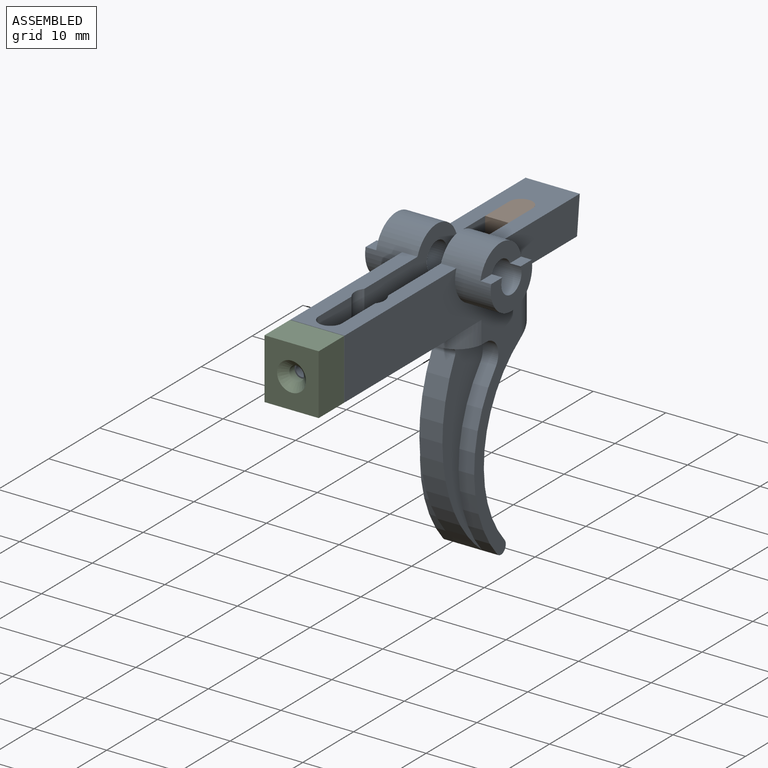
[diagram: assembled view]
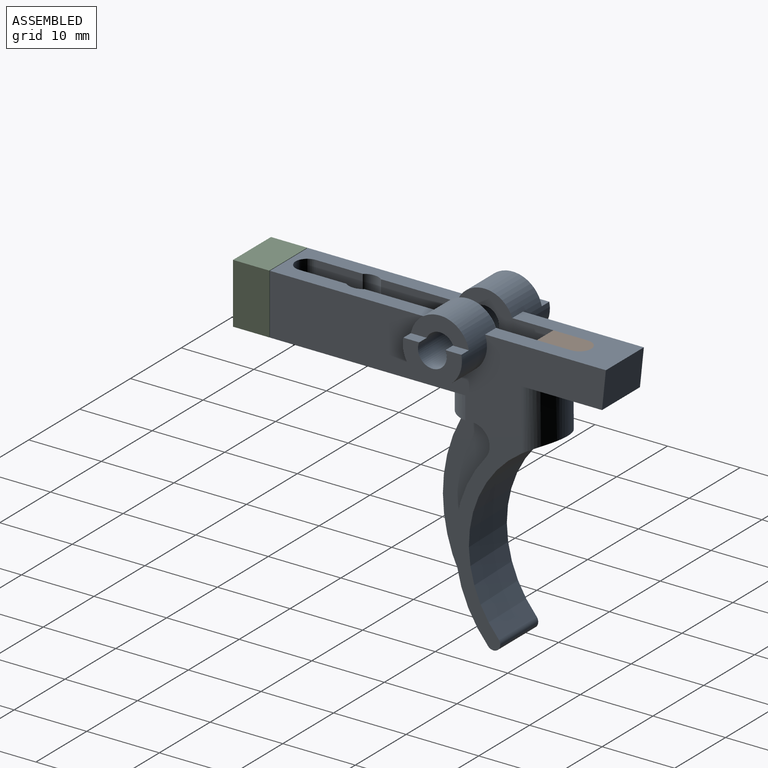
[diagram: assembled view, second angle]
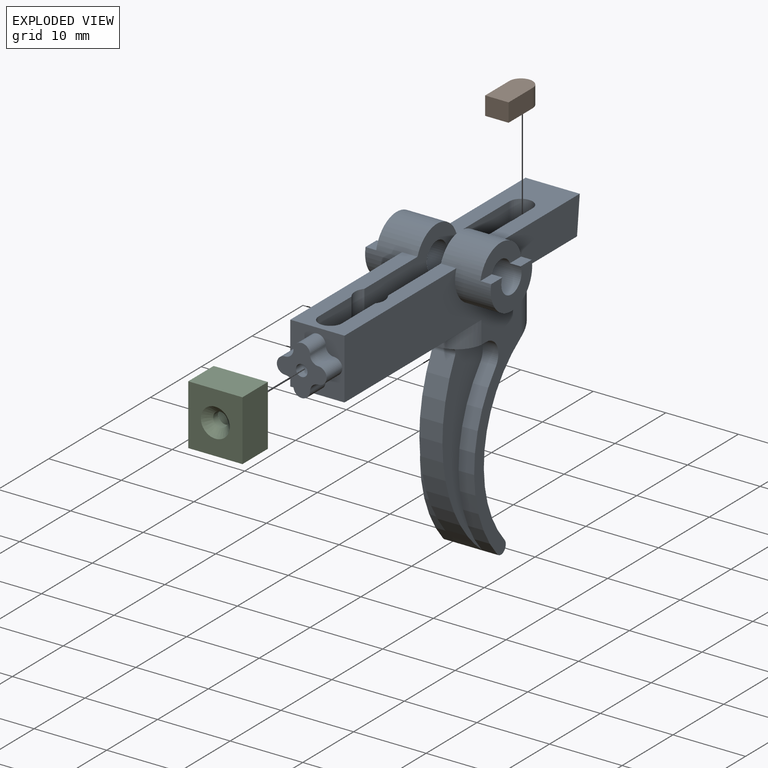
[diagram: exploded view]
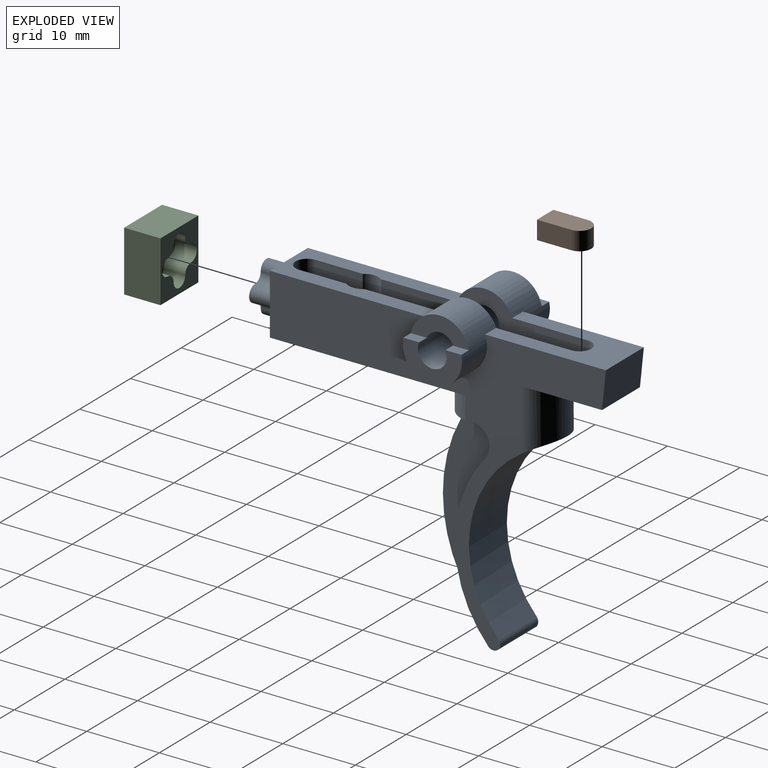
[diagram: exploded view, second angle]
ASSEMBLY  parts=3 mates=3
PART A: 56 faces, bbox 49.8x17.7x42.1 mm
  f0: cylinder r=1.14mm len=3.08mm, axis (1,0,0), area 11.1mm2, adj f1,f7,f54,f55
  f1: cylinder r=1.14mm len=3.08mm, axis (1,0,0), area 5.5mm2, adj f0,f2,f54,f55
  f2: cylinder r=1.14mm len=3.08mm, axis (1,0,0), area 11.1mm2, adj f1,f3,f54,f55
  f3: cylinder r=1.14mm len=3.08mm, axis (1,0,0), area 5.5mm2, adj f2,f4,f54,f55
  f4: cylinder r=1.14mm len=3.08mm, axis (1,0,0), area 11.1mm2, adj f3,f5,f54,f55
  f5: cylinder r=1.14mm len=3.08mm, axis (1,0,0), area 5.5mm2, adj f4,f6,f54,f55
  f6: cylinder r=1.14mm len=3.08mm, axis (1,0,0), area 11.1mm2, adj f5,f7,f54,f55
  f7: cylinder r=1.14mm len=3.08mm, axis (1,0,0), area 5.5mm2, adj f0,f6,f54,f55
  f8: cylinder r=0.8mm len=4.22mm, axis (1,0,0), area 21.2mm2, adj f9,f55
  f9: cylinder r=1.61mm len=5.97mm, axis (0,0,1), area 28.2mm2, adj f8,f10,f46,f47,f48
  f10: plane 22.04x7.5mm, normal (0,0,1), area 96mm2, adj f9,f12,f15,f16,f20,f21,f22,f37
  f11: plane 26.92x7.47mm, normal (0,0,-1), area 182.7mm2, adj f12,f18,f37,f54
  f12: plane 46.71x39.46mm, normal (0,1,0), area 398.3mm2, adj f10,f11,f17,f18,f19,f20,f39,f40
  f13: cylinder r=1.98mm len=7.04mm, axis (0,1,0), area 81.1mm2, adj f21,f23,f24,f25,f26
  f14: cylinder r=1.98mm len=7.04mm, axis (0,1,0), area 81.1mm2, adj f22,f32,f33,f34,f38
  f15: cylinder r=2.04mm len=6.99mm, axis (0,0,1), area 45.4mm2, adj f10,f21,f22,f31,f46,f47,f48,f49
  f16: cylinder r=4.08mm len=8.15mm, axis (0,1,0), area 130.5mm2, adj f10,f19,f21,f23,f24,f25,f26,f37
  f17: plane 7.47x4.22mm, normal (0,0,-1), area 13.5mm2, adj f12,f18,f28,f29,f30,f36,f37,f45
  f18: cylinder r=3.77mm len=7.47mm, axis (0,0,1), area 33.5mm2, adj f11,f12,f17,f37
  f19: plane 16.65x7.47mm, normal (0,0,1), area 86.7mm2, adj f12,f16,f20,f21,f37,f39,f50,f52
  f20: cylinder r=4.08mm len=8.15mm, axis (0,-1,0), area 130.5mm2, adj f10,f12,f19,f22,f32,f33,f34,f38
  f21: plane 28.55x8.68mm, normal (0,1,0), area 150.7mm2, adj f10,f13,f15,f16,f19,f49,f51,f52
  f22: plane 18.25x8.79mm, normal (0,-1,0), area 110.3mm2, adj f10,f14,f15,f20,f49,f50
  f23: plane 2.18x1.48mm, normal (0,0,1), area 3.2mm2, adj f13,f16,f25,f26
  f24: plane 2.18x1.48mm, normal (0,0,1), area 3.2mm2, adj f13,f16,f25,f26
  f25: plane 8.02x3.3mm, normal (0,-1,0), area 16.5mm2, adj f13,f16,f23,f24
  f26: plane 8.21x4.94mm, normal (0,-1,0), area 23.4mm2, adj f13,f16,f23,f24
  f27: cylinder r=17.78mm len=23.37mm, axis (0,1,0), area 54.8mm2, adj f29,f30,f37,f43
  f28: cylinder r=0.79mm len=3.18mm, axis (0,-1,0), area 5.2mm2, adj f17,f29,f35,f36
  f29: plane 27.72x8.4mm, normal (0,-1,0), area 87.1mm2, adj f17,f27,f28,f30,f35
  f30: cylinder r=2.38mm len=3.92mm, axis (0,1,0), area 11.6mm2, adj f17,f27,f29,f37
  f31: plane 4.15x4.15mm, normal (0,0,1), area 13.1mm2, adj f15
  f32: plane 2.18x1.48mm, normal (0,0,1), area 3.2mm2, adj f14,f20,f34,f38
  f33: plane 2.18x1.48mm, normal (0,0,1), area 3.2mm2, adj f14,f20,f34,f38
  f34: plane 8.06x3.34mm, normal (0,1,0), area 16.5mm2, adj f14,f20,f32,f33
  f35: cylinder r=20.96mm len=26.13mm, axis (0,-1,0), area 91.7mm2, adj f28,f29,f36,f43
  f36: plane 27.72x8.4mm, normal (0,1,0), area 87.1mm2, adj f17,f28,f35,f44,f45
  f37: plane 46.71x39.46mm, normal (0,-1,0), area 398.5mm2, adj f10,f11,f16,f17,f18,f19,f27,f30
  f38: plane 8.27x5.01mm, normal (0,1,0), area 23.5mm2, adj f14,f20,f32,f33
  f39: plane 7.47x5.11mm, normal (-0.99,0,-0.1), area 38.3mm2, adj f12,f19,f37,f40
  f40: plane 11.18x7.58mm, normal (0,0,-1), area 60.7mm2, adj f12,f37,f39,f41
  f41: cylinder r=3.73mm len=8.38mm, axis (0,0,1), area 85.1mm2, adj f12,f37,f40,f42
  f42: cylinder r=15.88mm len=25.73mm, axis (0,1,0), area 229.5mm2, adj f12,f37,f41,f43
  f43: cylinder r=0.95mm len=7.47mm, axis (0,1,0), area 22.3mm2, adj f12,f27,f35,f37,f42,f44
  f44: cylinder r=17.78mm len=23.37mm, axis (0,1,0), area 54.8mm2, adj f12,f36,f43,f45
  f45: cylinder r=2.38mm len=3.92mm, axis (0,1,0), area 11.6mm2, adj f12,f17,f36,f44
  f46: plane 8.12x3.23mm, normal (0,0,1), area 23.3mm2, adj f9,f15,f47,f48
  f47: plane 6.5x5.97mm, normal (0,-1,0), area 38.8mm2, adj f9,f10,f15,f46
  f48: plane 6.5x5.97mm, normal (0,1,0), area 38.8mm2, adj f9,f10,f15,f46
  f49: plane 23.76x3.23mm, normal (0,0,1), area 73.7mm2, adj f15,f21,f22,f50,f51
  f50: plane 10.4x5.97mm, normal (0,-1,0), area 40.3mm2, adj f19,f22,f49,f51,f52,f53
  f51: cylinder r=1.61mm len=3.43mm, axis (0,0,1), area 17.4mm2, adj f21,f49,f50,f53
  f52: cylinder r=1.61mm len=3.23mm, axis (0,0,1), area 12.9mm2, adj f19,f21,f50,f53
  f53: plane 7.96x3.23mm, normal (0,0,1), area 20.5mm2, adj f21,f50,f51,f52
  f54: plane 8.32x7.47mm, normal (1,0,0), area 37.1mm2, adj f0,f1,f2,f3,f4,f5,f6,f7
  f55: plane 6.86x6.86mm, normal (1,0,0), area 23mm2, adj f0,f1,f2,f3,f4,f5,f6,f7
PART B: 6 faces, bbox 3.2x2.5x6.4 mm
  f0: plane 4.74x2.54mm, normal (1,0,0), area 12mm2, adj f1,f3,f4,f5
  f1: cylinder r=1.61mm len=3.23mm, axis (0,1,0), area 12.9mm2, adj f0,f2,f4,f5
  f2: plane 4.74x2.54mm, normal (-1,0,0), area 12mm2, adj f1,f3,f4,f5
  f3: plane 3.23x2.54mm, normal (0,0,-1), area 8.2mm2, adj f0,f2,f4,f5
  f4: plane 6.35x3.23mm, normal (0,-1,0), area 19.4mm2, adj f0,f1,f2,f3
  f5: plane 6.35x3.23mm, normal (0,1,0), area 19.4mm2, adj f0,f1,f2,f3
PART C: 17 faces, bbox 7.5x5x8.3 mm
  f0: plane 8.32x7.47mm, normal (0,1,0), area 37.1mm2, adj f2,f3,f4,f5,f8,f9,f10,f11
  f1: cylinder r=1mm len=2mm, axis (0,-1,0), area 6.3mm2, adj f7,f16
  f2: plane 8.32x5mm, normal (1,0,0), area 41.6mm2, adj f0,f3,f5,f6
  f3: plane 7.47x5mm, normal (0,0,1), area 37.3mm2, adj f0,f2,f4,f6
  f4: plane 8.32x5mm, normal (-1,0,0), area 41.6mm2, adj f0,f3,f5,f6
  f5: plane 7.47x5mm, normal (0,0,-1), area 37.3mm2, adj f0,f2,f4,f6
  f6: plane 8.32x7.47mm, normal (0,-1,0), area 49.6mm2, adj f2,f3,f4,f5,f7
  f7: cone r=1mm half-angle=45deg, axis (0,-1,0), area 13.3mm2, adj f1,f6
  f8: cylinder r=1.14mm len=3mm, axis (0,1,0), area 5.4mm2, adj f0,f9,f15,f16
  f9: cylinder r=1.14mm len=3mm, axis (0,1,0), area 10.8mm2, adj f0,f8,f10,f16
  f10: cylinder r=1.14mm len=3mm, axis (0,1,0), area 5.4mm2, adj f0,f9,f11,f16
  f11: cylinder r=1.14mm len=3mm, axis (0,1,0), area 10.8mm2, adj f0,f10,f12,f16
  f12: cylinder r=1.14mm len=3mm, axis (0,1,0), area 5.4mm2, adj f0,f11,f13,f16
  f13: cylinder r=1.14mm len=3mm, axis (0,1,0), area 10.8mm2, adj f0,f12,f14,f16
  f14: cylinder r=1.14mm len=3mm, axis (0,1,0), area 5.4mm2, adj f0,f13,f15,f16
  f15: cylinder r=1.14mm len=3mm, axis (0,1,0), area 10.8mm2, adj f0,f8,f14,f16
  f16: plane 6.86x6.86mm, normal (0,1,0), area 21.9mm2, adj f1,f8,f9,f10,f11,f12,f13,f14
PLACE A rot(axis=(0,0,-1),90deg) t=(-15.95,11.5,-18.14)mm
PLACE B rot(axis=(-1,0,0),90deg) t=(-15.95,23.36,-19.26)mm
PLACE C rot(axis=(-1,0,0),0deg) t=(-15.95,-19.4,-20.88)mm
MATE revolute A.f4 <-> C.f13  axis (0,-1,0) through (-15.95,-17.4,-23.16)mm
MATE slider A.f52 <-> B.f1  axis (0,0,1) through (-15.95,25.73,-16.72)mm
MATE planar B.f5 <-> A.f53  axis (0,0,-1) through (-15.95,24,-19.26)mm
